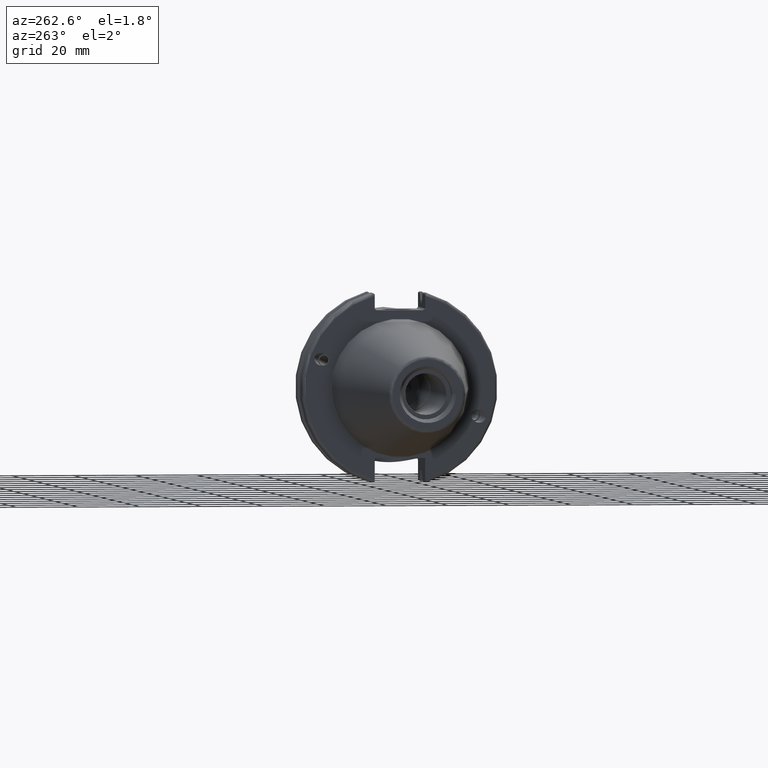
[diagram: clean part render]
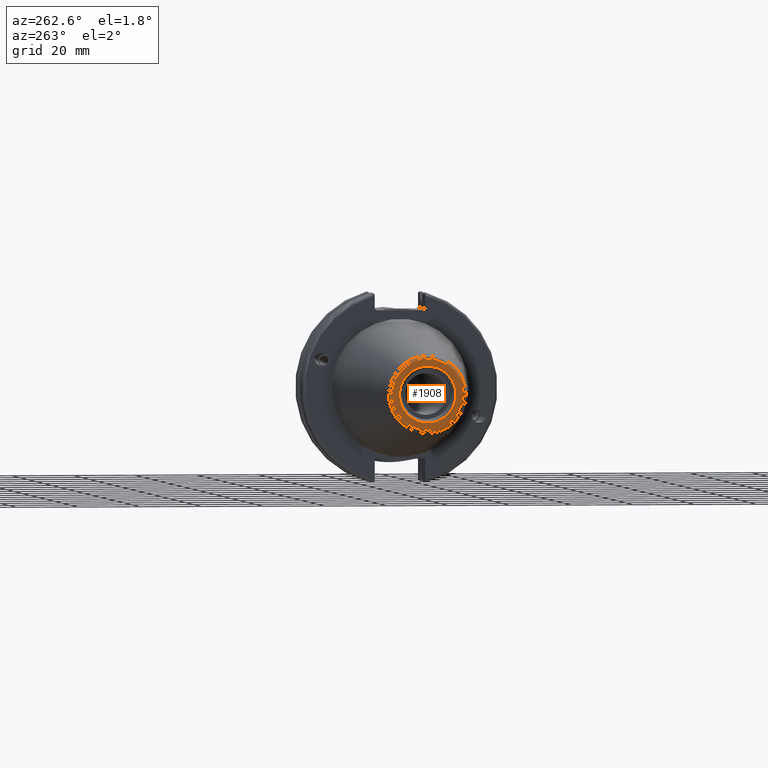
[diagram: same view with one face highlighted and labeled with its STEP entity id]
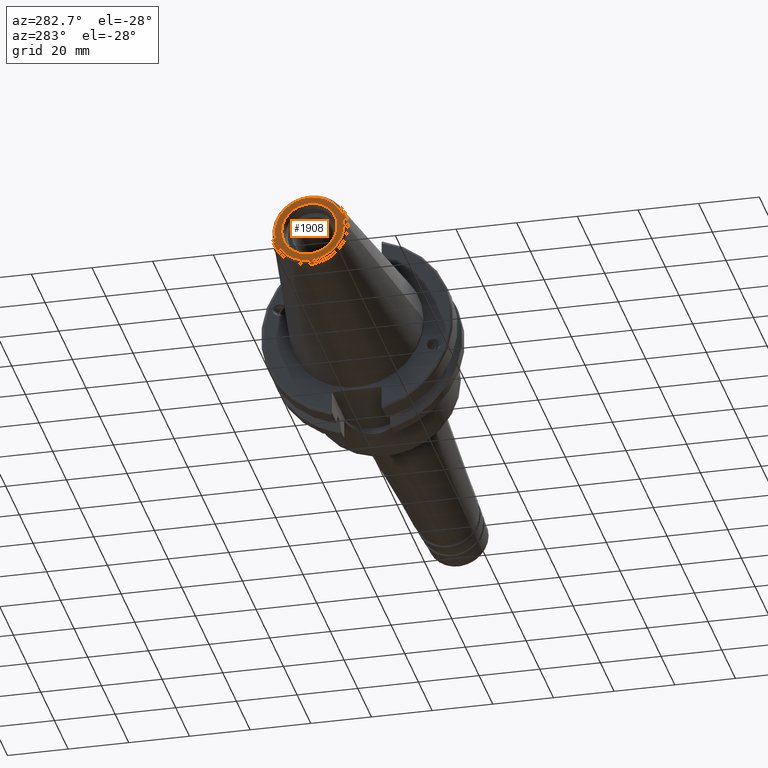
[diagram: same view with one face highlighted and labeled with its STEP entity id]
A machine part, auxiliary view. The second image highlights one B-rep face of the part: STEP entity #1908.
A second angle (auxiliary view) of the same face is appended — the face is thin or edge-on in the first view.
In plain terms, the highlighted planar face has unit normal (-1, 0, 0).
Its self-contained STEP definition (entity closure, byte-faithful):
#70=PLANE('',#2168);
#115=FACE_BOUND('',#383,.T.);
#263=FACE_OUTER_BOUND('',#382,.T.);
#382=EDGE_LOOP('',(#1679));
#383=EDGE_LOOP('',(#1680));
#720=CIRCLE('',#2167,11.4071305970304);
#721=CIRCLE('',#2169,9.15);
#917=VERTEX_POINT('',#3713);
#918=VERTEX_POINT('',#3717);
#1189=EDGE_CURVE('',#917,#917,#720,.T.);
#1190=EDGE_CURVE('',#918,#918,#721,.T.);
#1679=ORIENTED_EDGE('',*,*,#1189,.F.);
#1680=ORIENTED_EDGE('',*,*,#1190,.T.);
#1908=ADVANCED_FACE('',(#263,#115),#70,.T.);
#2167=AXIS2_PLACEMENT_3D('',#3715,#2710,#2711);
#2168=AXIS2_PLACEMENT_3D('',#3716,#2712,#2713);
#2169=AXIS2_PLACEMENT_3D('',#3718,#2714,#2715);
#2710=DIRECTION('center_axis',(1.,0.,0.));
#2711=DIRECTION('ref_axis',(0.,-1.,1.83697019872103E-16));
#2712=DIRECTION('center_axis',(-1.,0.,0.));
#2713=DIRECTION('ref_axis',(0.,0.,1.));
#2714=DIRECTION('center_axis',(1.,0.,0.));
#2715=DIRECTION('ref_axis',(0.,0.,-1.));
#3713=CARTESIAN_POINT('',(-68.25,-1.39697059731091E-15,11.4071305970304));
#3715=CARTESIAN_POINT('Origin',(-68.25,0.,0.));
#3716=CARTESIAN_POINT('Origin',(-68.25,12.271875,0.));
#3717=CARTESIAN_POINT('',(-68.25,-9.15,-1.12055182121983E-15));
#3718=CARTESIAN_POINT('Origin',(-68.25,0.,0.));